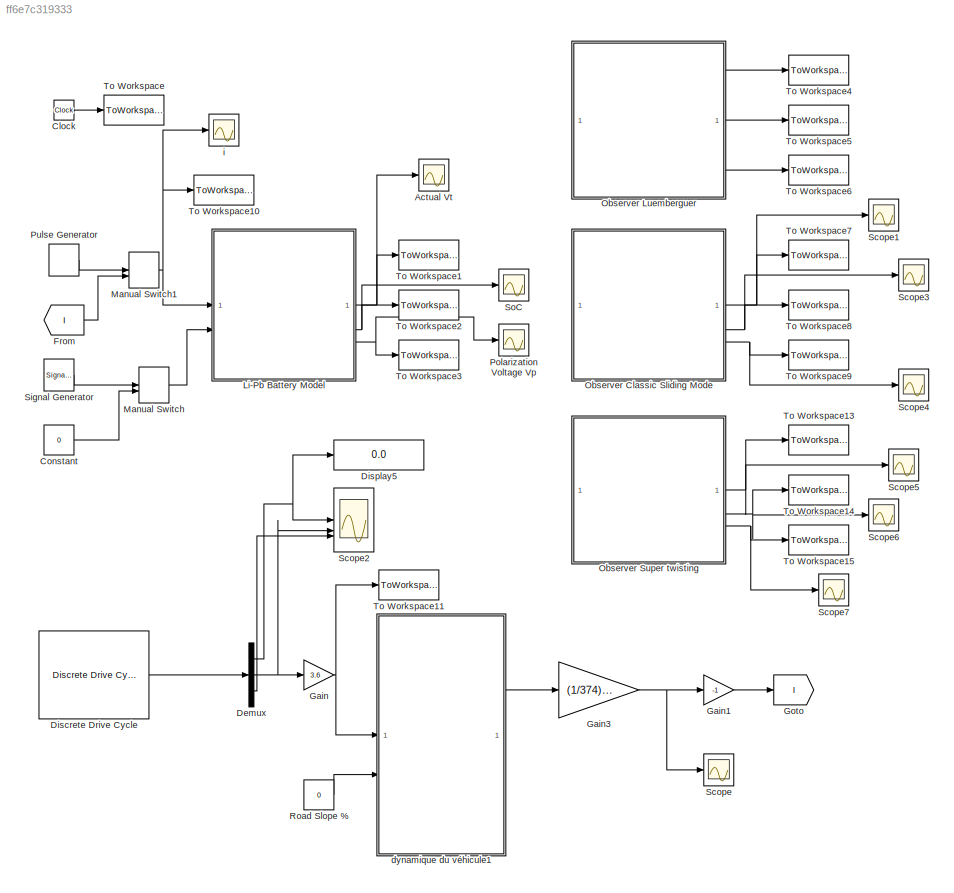
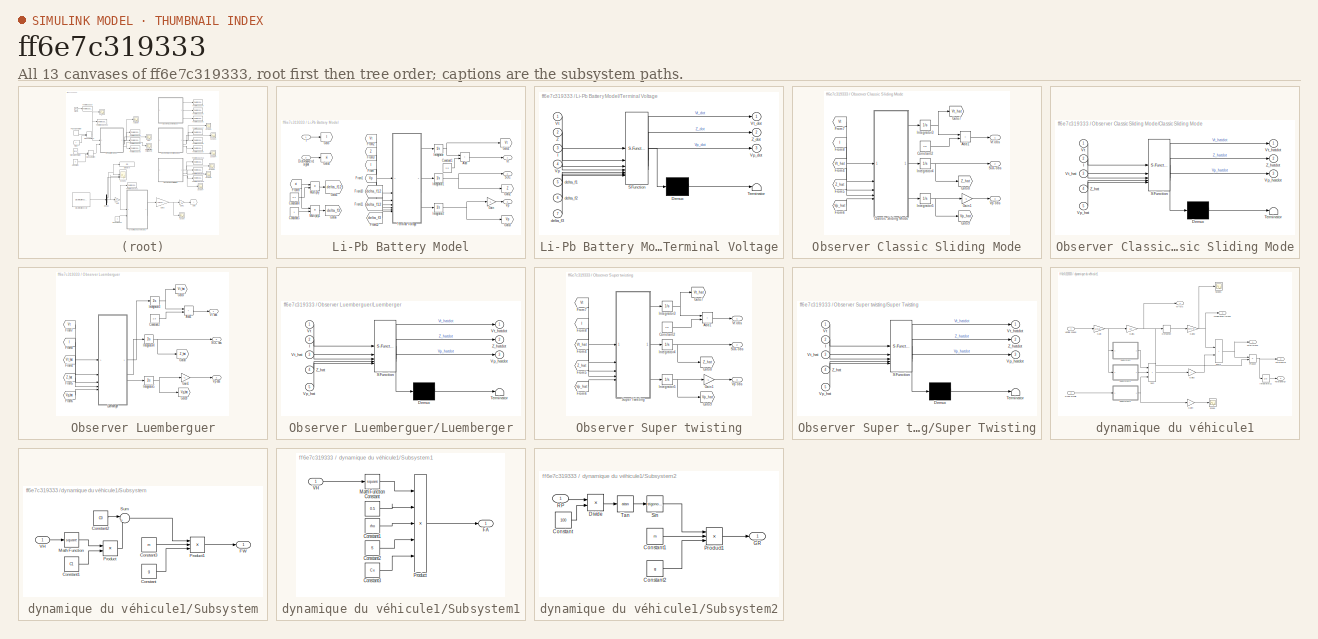
[diagram: thumbnail index - all 13 canvases of the model, root first then tree order]
MODEL slx_ff6e7c319333
KIND model
CONFIG AbsTol = auto
CONFIG EnableMultiTasking = off
CONFIG FixedStep = 0.001
CONFIG MaxStep = auto
CONFIG MinStep = 1e-3
CONFIG RelTol = 1e-3
CONFIG SampleTimeConstraint = Unconstrained
CONFIG SolverName = ode4
CONFIG StartTime = 0.0
CONFIG StopTime = 25000
BLOCK [Scope] Actual Vt 
  Floating = off
  NumInputPorts = 1
  ScopeSpecificationString = Simulink.scopes.TimeScopeBlockCfg('CurrentConfiguration', extmgr.ConfigurationSet(extmgr.Configuration('Core','General UI',true),extmgr.Configuration('Core','Source UI',true),extmgr.Configuration('Sources','WiredSimulink',true,'DataLoggingVariableName','ScopeData1'),extmgr.Configuration('Visuals','Time Domain',true,'SerializedDisplays',{struct('MinYLimReal','2.24488','MaxYLimReal','4.4047','YLabel...<+1725ch>
BLOCK [Clock] Clock
BLOCK [Constant] Constant
  Value = 0
BLOCK [Demux] Demux
  Outputs = 3
BLOCK [Reference] Discrete Drive Cycle  REF=drivecyclelib/Discrete Drive Cycle  (lib defined in slx_81b896a7d342, slx_ea48a560381a)
  SourceBlock = drivecyclelib/Discrete Drive Cycle
  SourceProductName = Drive Cycles Blockset
  SourceType = Discrete Drive Cycle
BLOCK [Display] Display5
  Decimation = 1
BLOCK [From] From
  GotoTag = I
BLOCK [Gain] Gain
  Gain = 3.6
BLOCK [Gain] Gain1
  Gain = -1
BLOCK [Gain] Gain3
  Gain = (1/374)/6
BLOCK [Goto] Goto
  GotoTag = I
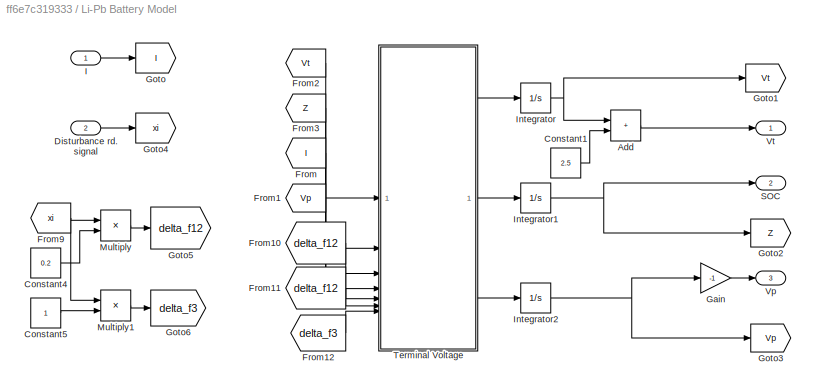
BLOCK [SubSystem] Li-Pb Battery Model
BLOCK [Sum] Li-Pb Battery Model/Add
  IconShape = rectangular
BLOCK [Constant] Li-Pb Battery Model/Constant1
  Value = 2.5
BLOCK [Constant] Li-Pb Battery Model/Constant4
  Value = 0.2
BLOCK [Constant] Li-Pb Battery Model/Constant5
BLOCK [Inport] Li-Pb Battery Model/Disturbance rd. signal
  Port = 2
BLOCK [From] Li-Pb Battery Model/From
  GotoTag = I
  TagVisibility = global
BLOCK [From] Li-Pb Battery Model/From1
  GotoTag = Vp
BLOCK [From] Li-Pb Battery Model/From10
  GotoTag = delta_f12
BLOCK [From] Li-Pb Battery Model/From11
  GotoTag = delta_f12
BLOCK [From] Li-Pb Battery Model/From12
  GotoTag = delta_f3
BLOCK [From] Li-Pb Battery Model/From2
  GotoTag = Vt
  TagVisibility = global
BLOCK [From] Li-Pb Battery Model/From3
  GotoTag = Z
BLOCK [From] Li-Pb Battery Model/From9
  GotoTag = xi
BLOCK [Gain] Li-Pb Battery Model/Gain
  Gain = -1
BLOCK [Goto] Li-Pb Battery Model/Goto
  GotoTag = I
  TagVisibility = global
BLOCK [Goto] Li-Pb Battery Model/Goto1
  GotoTag = Vt
  TagVisibility = global
BLOCK [Goto] Li-Pb Battery Model/Goto2
  GotoTag = Z
BLOCK [Goto] Li-Pb Battery Model/Goto3
  GotoTag = Vp
BLOCK [Goto] Li-Pb Battery Model/Goto4
  GotoTag = xi
BLOCK [Goto] Li-Pb Battery Model/Goto5
  GotoTag = delta_f12
BLOCK [Goto] Li-Pb Battery Model/Goto6
  GotoTag = delta_f3
BLOCK [Inport] Li-Pb Battery Model/I
BLOCK [Integrator] Li-Pb Battery Model/Integrator
  InitialCondition = 1.5
BLOCK [Integrator] Li-Pb Battery Model/Integrator1
  InitialCondition = 1
BLOCK [Integrator] Li-Pb Battery Model/Integrator2
BLOCK [Product] Li-Pb Battery Model/Multiply
BLOCK [Product] Li-Pb Battery Model/Multiply1
BLOCK [Outport] Li-Pb Battery Model/SOC
  Port = 2
  VectorParamsAs1DForOutWhenUnconnected = off
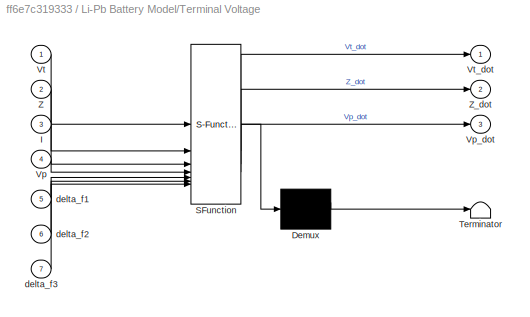
BLOCK [SubSystem] Li-Pb Battery Model/Terminal Voltage
  ErrorFcn = Stateflow.Translate.translate
  PermitHierarchicalResolution = ExplicitOnly
  SFBlockType = MATLAB Function
  TreatAsAtomicUnit = on
BLOCK [Demux] Li-Pb Battery Model/Terminal Voltage/ Demux 
  Outputs = 1
BLOCK [S-Function] Li-Pb Battery Model/Terminal Voltage/ SFunction 
  EnableBusSupport = on
  FunctionName = sf_sfun
  PortCounts = [7 4]
  SFcnIsStateOwnerBlock = off
  SFunctionDeploymentMode = off
  Tag = Stateflow S-Function 1
BLOCK [Terminator] Li-Pb Battery Model/Terminal Voltage/ Terminator 
BLOCK [Inport] Li-Pb Battery Model/Terminal Voltage/I
  Port = 3
BLOCK [Inport] Li-Pb Battery Model/Terminal Voltage/Vp
  Port = 4
BLOCK [Outport] Li-Pb Battery Model/Terminal Voltage/Vp_dot
  Port = 3
  VectorParamsAs1DForOutWhenUnconnected = off
BLOCK [Inport] Li-Pb Battery Model/Terminal Voltage/Vt
BLOCK [Outport] Li-Pb Battery Model/Terminal Voltage/Vt_dot
  VectorParamsAs1DForOutWhenUnconnected = off
BLOCK [Inport] Li-Pb Battery Model/Terminal Voltage/Z
  Port = 2
BLOCK [Outport] Li-Pb Battery Model/Terminal Voltage/Z_dot
  Port = 2
  VectorParamsAs1DForOutWhenUnconnected = off
BLOCK [Inport] Li-Pb Battery Model/Terminal Voltage/delta_f1
  Port = 5
BLOCK [Inport] Li-Pb Battery Model/Terminal Voltage/delta_f2
  Port = 6
BLOCK [Inport] Li-Pb Battery Model/Terminal Voltage/delta_f3
  Port = 7
BLOCK [Outport] Li-Pb Battery Model/Vp
  Port = 3
  VectorParamsAs1DForOutWhenUnconnected = off
BLOCK [Outport] Li-Pb Battery Model/Vt
  VectorParamsAs1DForOutWhenUnconnected = off
BLOCK [ManualSwitch] Manual Switch
BLOCK [ManualSwitch] Manual Switch1
BLOCK [SubSystem] Observer Classic Sliding Mode
BLOCK [Sum] Observer Classic Sliding Mode/Add1
  IconShape = rectangular
BLOCK [SubSystem] Observer Classic Sliding Mode/Classic Sliding Mode
  ErrorFcn = Stateflow.Translate.translate
  PermitHierarchicalResolution = ExplicitOnly
  SFBlockType = MATLAB Function
  TreatAsAtomicUnit = on
BLOCK [Demux] Observer Classic Sliding Mode/Classic Sliding Mode/ Demux 
  Outputs = 1
BLOCK [S-Function] Observer Classic Sliding Mode/Classic Sliding Mode/ SFunction 
  EnableBusSupport = on
  FunctionName = sf_sfun
  PortCounts = [5 4]
  SFcnIsStateOwnerBlock = off
  SFunctionDeploymentMode = off
  Tag = Stateflow S-Function 3
BLOCK [Terminator] Observer Classic Sliding Mode/Classic Sliding Mode/ Terminator 
BLOCK [Inport] Observer Classic Sliding Mode/Classic Sliding Mode/I
  Port = 2
BLOCK [Inport] Observer Classic Sliding Mode/Classic Sliding Mode/Vp_hat
  Port = 5
BLOCK [Outport] Observer Classic Sliding Mode/Classic Sliding Mode/Vp_hatdot
  Port = 3
  VectorParamsAs1DForOutWhenUnconnected = off
BLOCK [Inport] Observer Classic Sliding Mode/Classic Sliding Mode/Vt
BLOCK [Inport] Observer Classic Sliding Mode/Classic Sliding Mode/Vt_hat
  Port = 3
BLOCK [Outport] Observer Classic Sliding Mode/Classic Sliding Mode/Vt_hatdot
  VectorParamsAs1DForOutWhenUnconnected = off
BLOCK [Inport] Observer Classic Sliding Mode/Classic Sliding Mode/Z_hat
  Port = 4
BLOCK [Outport] Observer Classic Sliding Mode/Classic Sliding Mode/Z_hatdot
  Port = 2
  VectorParamsAs1DForOutWhenUnconnected = off
BLOCK [Constant] Observer Classic Sliding Mode/Constant2
  Value = 2.5
BLOCK [From] Observer Classic Sliding Mode/From4
  GotoTag = Vt_hat
BLOCK [From] Observer Classic Sliding Mode/From5
  GotoTag = Z_hat
BLOCK [From] Observer Classic Sliding Mode/From6
  GotoTag = Vp_hat
BLOCK [From] Observer Classic Sliding Mode/From7
  GotoTag = Vt
  TagVisibility = global
BLOCK [From] Observer Classic Sliding Mode/From8
  GotoTag = I
  TagVisibility = global
BLOCK [Gain] Observer Classic Sliding Mode/Gain1
  Gain = -1
BLOCK [Goto] Observer Classic Sliding Mode/Goto7
  GotoTag = Vt_hat
BLOCK [Goto] Observer Classic Sliding Mode/Goto8
  GotoTag = Z_hat
BLOCK [Goto] Observer Classic Sliding Mode/Goto9
  GotoTag = Vp_hat
BLOCK [Integrator] Observer Classic Sliding Mode/Integrator3
  InitialCondition = 3
BLOCK [Integrator] Observer Classic Sliding Mode/Integrator4
  InitialCondition = 2
BLOCK [Integrator] Observer Classic Sliding Mode/Integrator5
  InitialCondition = 1
BLOCK [Outport] Observer Classic Sliding Mode/SOC obs
  Port = 2
  VectorParamsAs1DForOutWhenUnconnected = off
BLOCK [Outport] Observer Classic Sliding Mode/Vp obs
  Port = 3
  VectorParamsAs1DForOutWhenUnconnected = off
BLOCK [Outport] Observer Classic Sliding Mode/Vt obs
  VectorParamsAs1DForOutWhenUnconnected = off
BLOCK [SubSystem] Observer Luemberguer
BLOCK [Sum] Observer Luemberguer/Add1
  IconShape = rectangular
BLOCK [Constant] Observer Luemberguer/Constant2
  Value = 2.5
BLOCK [From] Observer Luemberguer/From4
  GotoTag = Vt_hat
BLOCK [From] Observer Luemberguer/From5
  GotoTag = Z_hat
BLOCK [From] Observer Luemberguer/From6
  GotoTag = Vp_hat
BLOCK [From] Observer Luemberguer/From7
  GotoTag = Vt
  TagVisibility = global
BLOCK [From] Observer Luemberguer/From8
  GotoTag = I
  TagVisibility = global
BLOCK [Gain] Observer Luemberguer/Gain1
  Gain = -1
BLOCK [Goto] Observer Luemberguer/Goto7
  GotoTag = Vt_hat
BLOCK [Goto] Observer Luemberguer/Goto8
  GotoTag = Z_hat
BLOCK [Goto] Observer Luemberguer/Goto9
  GotoTag = Vp_hat
BLOCK [Integrator] Observer Luemberguer/Integrator3
  InitialCondition = 3
BLOCK [Integrator] Observer Luemberguer/Integrator4
  InitialCondition = 2
BLOCK [Integrator] Observer Luemberguer/Integrator5
  InitialCondition = 1
BLOCK [SubSystem] Observer Luemberguer/Luemberger
  ErrorFcn = Stateflow.Translate.translate
  PermitHierarchicalResolution = ExplicitOnly
  SFBlockType = MATLAB Function
  TreatAsAtomicUnit = on
BLOCK [Demux] Observer Luemberguer/Luemberger/ Demux 
  Outputs = 1
BLOCK [S-Function] Observer Luemberguer/Luemberger/ SFunction 
  EnableBusSupport = on
  FunctionName = sf_sfun
  PortCounts = [5 4]
  SFcnIsStateOwnerBlock = off
  SFunctionDeploymentMode = off
  Tag = Stateflow S-Function 2
BLOCK [Terminator] Observer Luemberguer/Luemberger/ Terminator 
BLOCK [Inport] Observer Luemberguer/Luemberger/I
  Port = 2
BLOCK [Inport] Observer Luemberguer/Luemberger/Vp_hat
  Port = 5
BLOCK [Outport] Observer Luemberguer/Luemberger/Vp_hatdot
  Port = 3
  VectorParamsAs1DForOutWhenUnconnected = off
BLOCK [Inport] Observer Luemberguer/Luemberger/Vt
BLOCK [Inport] Observer Luemberguer/Luemberger/Vt_hat
  Port = 3
BLOCK [Outport] Observer Luemberguer/Luemberger/Vt_hatdot
  VectorParamsAs1DForOutWhenUnconnected = off
BLOCK [Inport] Observer Luemberguer/Luemberger/Z_hat
  Port = 4
BLOCK [Outport] Observer Luemberguer/Luemberger/Z_hatdot
  Port = 2
  VectorParamsAs1DForOutWhenUnconnected = off
BLOCK [Outport] Observer Luemberguer/SOC obs
  Port = 2
  VectorParamsAs1DForOutWhenUnconnected = off
BLOCK [Outport] Observer Luemberguer/Vp obs
  Port = 3
  VectorParamsAs1DForOutWhenUnconnected = off
BLOCK [Outport] Observer Luemberguer/Vt obs
  VectorParamsAs1DForOutWhenUnconnected = off
BLOCK [SubSystem] Observer Super twisting
BLOCK [Sum] Observer Super twisting/Add1
  IconShape = rectangular
BLOCK [Constant] Observer Super twisting/Constant2
  Value = 2.5
BLOCK [From] Observer Super twisting/From4
  GotoTag = Vt_hat
BLOCK [From] Observer Super twisting/From5
  GotoTag = Z_hat
BLOCK [From] Observer Super twisting/From6
  GotoTag = Vp_hat
BLOCK [From] Observer Super twisting/From7
  GotoTag = Vt
  TagVisibility = global
BLOCK [From] Observer Super twisting/From8
  GotoTag = I
  TagVisibility = global
BLOCK [Gain] Observer Super twisting/Gain1
  Gain = -1
BLOCK [Goto] Observer Super twisting/Goto7
  GotoTag = Vt_hat
BLOCK [Goto] Observer Super twisting/Goto8
  GotoTag = Z_hat
BLOCK [Goto] Observer Super twisting/Goto9
  GotoTag = Vp_hat
BLOCK [Integrator] Observer Super twisting/Integrator3
  InitialCondition = 3
BLOCK [Integrator] Observer Super twisting/Integrator4
  InitialCondition = 2
BLOCK [Integrator] Observer Super twisting/Integrator5
  InitialCondition = 1
BLOCK [Outport] Observer Super twisting/SOC obs
  Port = 2
  VectorParamsAs1DForOutWhenUnconnected = off
BLOCK [SubSystem] Observer Super twisting/Super Twisting
  ErrorFcn = Stateflow.Translate.translate
  PermitHierarchicalResolution = ExplicitOnly
  SFBlockType = MATLAB Function
  TreatAsAtomicUnit = on
BLOCK [Demux] Observer Super twisting/Super Twisting/ Demux 
  Outputs = 1
BLOCK [S-Function] Observer Super twisting/Super Twisting/ SFunction 
  EnableBusSupport = on
  FunctionName = sf_sfun
  PortCounts = [5 4]
  SFcnIsStateOwnerBlock = off
  SFunctionDeploymentMode = off
  Tag = Stateflow S-Function 4
BLOCK [Terminator] Observer Super twisting/Super Twisting/ Terminator 
BLOCK [Inport] Observer Super twisting/Super Twisting/I
  Port = 2
BLOCK [Inport] Observer Super twisting/Super Twisting/Vp_hat
  Port = 5
BLOCK [Outport] Observer Super twisting/Super Twisting/Vp_hatdot
  Port = 3
  VectorParamsAs1DForOutWhenUnconnected = off
BLOCK [Inport] Observer Super twisting/Super Twisting/Vt
BLOCK [Inport] Observer Super twisting/Super Twisting/Vt_hat
  Port = 3
BLOCK [Outport] Observer Super twisting/Super Twisting/Vt_hatdot
  VectorParamsAs1DForOutWhenUnconnected = off
BLOCK [Inport] Observer Super twisting/Super Twisting/Z_hat
  Port = 4
BLOCK [Outport] Observer Super twisting/Super Twisting/Z_hatdot
  Port = 2
  VectorParamsAs1DForOutWhenUnconnected = off
BLOCK [Outport] Observer Super twisting/Vp obs
  Port = 3
  VectorParamsAs1DForOutWhenUnconnected = off
BLOCK [Outport] Observer Super twisting/Vt obs
  VectorParamsAs1DForOutWhenUnconnected = off
BLOCK [Scope] Polarization Voltage Vp
  Floating = off
  NumInputPorts = 1
  ScopeSpecificationString = Simulink.scopes.TimeScopeBlockCfg('CurrentConfiguration', extmgr.ConfigurationSet(extmgr.Configuration('Core','General UI',true),extmgr.Configuration('Core','Source UI',true),extmgr.Configuration('Sources','WiredSimulink',true,'DataLoggingVariableName','ScopeData4'),extmgr.Configuration('Visuals','Time Domain',true,'SerializedDisplays',{struct('MinYLimReal','-0.00247','MaxYLimReal','0.01744','YLab...<+1498ch>
BLOCK [DiscretePulseGenerator] Pulse Generator
  Amplitude = -5
  Period = 960
  PulseType = Time based
  PulseWidth = (360*100)/960
BLOCK [Constant] Road Slope %
  Value = 0
BLOCK [Scope] Scope
  Floating = off
  NumInputPorts = 1
  ScopeSpecificationString = Simulink.scopes.TimeScopeBlockCfg('CurrentConfiguration', extmgr.ConfigurationSet(extmgr.Configuration('Core','General UI',true),extmgr.Configuration('Core','Source UI',true),extmgr.Configuration('Sources','WiredSimulink',true,'DataLoggingVariableName','ScopeData1'),extmgr.Configuration('Visuals','Time Domain',true,'SerializedDisplays',{struct('MinYLimReal','-8.37873','MaxYLimReal','10.85587','YLa...<+1457ch>
BLOCK [Scope] Scope1
  Floating = off
  NumInputPorts = 1
  ScopeSpecificationString = Simulink.scopes.TimeScopeBlockCfg('CurrentConfiguration', extmgr.ConfigurationSet(extmgr.Configuration('Core','General UI',true),extmgr.Configuration('Core','Source UI',true),extmgr.Configuration('Sources','WiredSimulink',true,'DataLoggingVariableName','ScopeData1'),extmgr.Configuration('Visuals','Time Domain',true),extmgr.Configuration('Tools','Plot Navigation',true),extmgr.Configuration('Tools',...<+40ch>
BLOCK [Scope] Scope2
  Floating = off
  NumInputPorts = 3
  ScopeSpecificationString = Simulink.scopes.TimeScopeBlockCfg('CurrentConfiguration', extmgr.ConfigurationSet(extmgr.Configuration('Core','General UI',true),extmgr.Configuration('Core','Source UI',true),extmgr.Configuration('Sources','WiredSimulink',true,'DataLoggingVariableName','ScopeData2','DataLoggingSaveFormat','StructureWithTime','DataLoggingDecimation','1','DataLoggingDecimateData',true),extmgr.Configuration('Visuals'...<+3404ch>
BLOCK [Scope] Scope3
  Floating = off
  NumInputPorts = 1
  ScopeSpecificationString = Simulink.scopes.TimeScopeBlockCfg('CurrentConfiguration', extmgr.ConfigurationSet(extmgr.Configuration('Core','General UI',true),extmgr.Configuration('Core','Source UI',true),extmgr.Configuration('Sources','WiredSimulink',true,'DataLoggingVariableName','ScopeData2'),extmgr.Configuration('Visuals','Time Domain',true),extmgr.Configuration('Tools','Plot Navigation',true),extmgr.Configuration('Tools',...<+40ch>
BLOCK [Scope] Scope4
  Floating = off
  NumInputPorts = 1
  ScopeSpecificationString = Simulink.scopes.TimeScopeBlockCfg('CurrentConfiguration', extmgr.ConfigurationSet(extmgr.Configuration('Core','General UI',true),extmgr.Configuration('Core','Source UI',true),extmgr.Configuration('Sources','WiredSimulink',true,'DataLoggingVariableName','ScopeData3'),extmgr.Configuration('Visuals','Time Domain',true),extmgr.Configuration('Tools','Plot Navigation',true),extmgr.Configuration('Tools',...<+40ch>
BLOCK [Scope] Scope5
  Floating = off
  NumInputPorts = 1
  ScopeSpecificationString = Simulink.scopes.TimeScopeBlockCfg('CurrentConfiguration', extmgr.ConfigurationSet(extmgr.Configuration('Core','General UI',true),extmgr.Configuration('Core','Source UI',true),extmgr.Configuration('Sources','WiredSimulink',true,'DataLoggingVariableName','ScopeData4'),extmgr.Configuration('Visuals','Time Domain',true),extmgr.Configuration('Tools','Plot Navigation',true),extmgr.Configuration('Tools',...<+40ch>
BLOCK [Scope] Scope6
  Floating = off
  NumInputPorts = 1
  ScopeSpecificationString = Simulink.scopes.TimeScopeBlockCfg('CurrentConfiguration', extmgr.ConfigurationSet(extmgr.Configuration('Core','General UI',true),extmgr.Configuration('Core','Source UI',true),extmgr.Configuration('Sources','WiredSimulink',true,'DataLoggingVariableName','ScopeData5'),extmgr.Configuration('Visuals','Time Domain',true),extmgr.Configuration('Tools','Plot Navigation',true),extmgr.Configuration('Tools',...<+40ch>
BLOCK [Scope] Scope7
  Floating = off
  NumInputPorts = 1
  ScopeSpecificationString = Simulink.scopes.TimeScopeBlockCfg('CurrentConfiguration', extmgr.ConfigurationSet(extmgr.Configuration('Core','General UI',true),extmgr.Configuration('Core','Source UI',true),extmgr.Configuration('Sources','WiredSimulink',true,'DataLoggingVariableName','ScopeData6'),extmgr.Configuration('Visuals','Time Domain',true),extmgr.Configuration('Tools','Plot Navigation',true),extmgr.Configuration('Tools',...<+40ch>
BLOCK [SignalGenerator] Signal Generator
  Amplitude = 0.01
  Frequency = 1000
  WaveForm = random
BLOCK [Scope] SoC
  Floating = off
  NumInputPorts = 1
  ScopeSpecificationString = Simulink.scopes.TimeScopeBlockCfg('CurrentConfiguration', extmgr.ConfigurationSet(extmgr.Configuration('Core','General UI',true),extmgr.Configuration('Core','Source UI',true),extmgr.Configuration('Sources','WiredSimulink',true,'DataLoggingVariableName','ScopeData3'),extmgr.Configuration('Visuals','Time Domain',true,'SerializedDisplays',{struct('MinYLimReal','-0.03707','MaxYLimReal','1.11523','YLab...<+1469ch>
BLOCK [ToWorkspace] To Workspace
  FixptAsFi = on
  MaxDataPoints = inf
  SampleTime = -1
  VariableName = t
BLOCK [ToWorkspace] To Workspace1
  FixptAsFi = on
  MaxDataPoints = inf
  SampleTime = -1
  VariableName = Vt
BLOCK [ToWorkspace] To Workspace10
  FixptAsFi = on
  MaxDataPoints = inf
  SampleTime = -1
  VariableName = I
BLOCK [ToWorkspace] To Workspace11
  FixptAsFi = on
  MaxDataPoints = inf
  SampleTime = -1
  VariableName = driving_cycle
BLOCK [ToWorkspace] To Workspace13
  FixptAsFi = on
  MaxDataPoints = inf
  SampleTime = -1
  VariableName = Vt_hat_Super
BLOCK [ToWorkspace] To Workspace14
  FixptAsFi = on
  MaxDataPoints = inf
  SampleTime = -1
  VariableName = Z_hat_Super
BLOCK [ToWorkspace] To Workspace15
  FixptAsFi = on
  MaxDataPoints = inf
  SampleTime = -1
  VariableName = Vp_hat_Super
BLOCK [ToWorkspace] To Workspace2
  FixptAsFi = on
  MaxDataPoints = inf
  SampleTime = -1
  VariableName = Z
BLOCK [ToWorkspace] To Workspace3
  FixptAsFi = on
  MaxDataPoints = inf
  SampleTime = -1
  VariableName = Vp
BLOCK [ToWorkspace] To Workspace4
  FixptAsFi = on
  MaxDataPoints = inf
  SampleTime = -1
  VariableName = Vt_hat_Luem
BLOCK [ToWorkspace] To Workspace5
  FixptAsFi = on
  MaxDataPoints = inf
  SampleTime = -1
  VariableName = Z_hat_Luem
BLOCK [ToWorkspace] To Workspace6
  FixptAsFi = on
  MaxDataPoints = inf
  SampleTime = -1
  VariableName = Vp_hat_Luem
BLOCK [ToWorkspace] To Workspace7
  FixptAsFi = on
  MaxDataPoints = inf
  SampleTime = -1
  VariableName = Vt_hat_Sli
BLOCK [ToWorkspace] To Workspace8
  FixptAsFi = on
  MaxDataPoints = inf
  SampleTime = -1
  VariableName = Z_hat_Sli
BLOCK [ToWorkspace] To Workspace9
  FixptAsFi = on
  MaxDataPoints = inf
  SampleTime = -1
  VariableName = Vp_hat_Sli
BLOCK [SubSystem] dynamique du véhicule1
BLOCK [Outport] dynamique du véhicule1/Acceleration torque
  Port = 3
  VectorParamsAs1DForOutWhenUnconnected = off
BLOCK [Derivative] dynamique du véhicule1/Derivative
BLOCK [Gain] dynamique du véhicule1/Gain
  Gain = 1/3.6
BLOCK [Gain] dynamique du véhicule1/Gain1
  Gain = 1/r
BLOCK [Gain] dynamique du véhicule1/Gain2
  Gain = m*r^2
BLOCK [Gain] dynamique du véhicule1/Gain3
  Gain = r
BLOCK [Gain] dynamique du véhicule1/Gain4
  Gain = r
BLOCK [Integrator] dynamique du véhicule1/Integrator11
BLOCK [Product] dynamique du véhicule1/Product
BLOCK [Inport] dynamique du véhicule1/Road profile
  Port = 2
BLOCK [Scope] dynamique du véhicule1/Scope
  Floating = off
  NumInputPorts = 1
  ScopeSpecificationString = Simulink.scopes.TimeScopeBlockCfg('CurrentConfiguration', extmgr.ConfigurationSet(extmgr.Configuration('Core','General UI',true),extmgr.Configuration('Core','Source UI',true),extmgr.Configuration('Sources','WiredSimulink',true,'DataLoggingVariableName','ScopeData1'),extmgr.Configuration('Visuals','Time Domain',true),extmgr.Configuration('Tools','Plot Navigation',true),extmgr.Configuration('Tools',...<+40ch>
BLOCK [Scope] dynamique du véhicule1/Scope1
  Floating = off
  NumInputPorts = 1
  ScopeSpecificationString = Simulink.scopes.TimeScopeBlockCfg('CurrentConfiguration', extmgr.ConfigurationSet(extmgr.Configuration('Core','General UI',true),extmgr.Configuration('Core','Source UI',true),extmgr.Configuration('Sources','WiredSimulink',true,'DataLoggingVariableName','ScopeData2'),extmgr.Configuration('Visuals','Time Domain',true),extmgr.Configuration('Tools','Plot Navigation',true),extmgr.Configuration('Tools',...<+40ch>
BLOCK [SubSystem] dynamique du véhicule1/Subsystem
BLOCK [Constant] dynamique du véhicule1/Subsystem/Constant
  Value = g
BLOCK [Constant] dynamique du véhicule1/Subsystem/Constant1
  Value = C1
BLOCK [Constant] dynamique du véhicule1/Subsystem/Constant2
  Value = C0
BLOCK [Constant] dynamique du véhicule1/Subsystem/Constant3
  Value = m
BLOCK [Outport] dynamique du véhicule1/Subsystem/FW
BLOCK [Math] dynamique du véhicule1/Subsystem/Math Function
  Operator = square
  SignedPower = on
BLOCK [Product] dynamique du véhicule1/Subsystem/Product
BLOCK [Product] dynamique du véhicule1/Subsystem/Product1
  Inputs = 3
BLOCK [Sum] dynamique du véhicule1/Subsystem/Sum
  Inputs = |++
BLOCK [Inport] dynamique du véhicule1/Subsystem/VH
BLOCK [SubSystem] dynamique du véhicule1/Subsystem1
BLOCK [Constant] dynamique du véhicule1/Subsystem1/Constant
  Value = 0.5
BLOCK [Constant] dynamique du véhicule1/Subsystem1/Constant1
  Value = rho
BLOCK [Constant] dynamique du véhicule1/Subsystem1/Constant2
  Value = S
BLOCK [Constant] dynamique du véhicule1/Subsystem1/Constant3
  Value = Cx
BLOCK [Outport] dynamique du véhicule1/Subsystem1/FA
BLOCK [Math] dynamique du véhicule1/Subsystem1/Math Function
  Operator = square
  SignedPower = on
BLOCK [Product] dynamique du véhicule1/Subsystem1/Product
  Inputs = 5
BLOCK [Inport] dynamique du véhicule1/Subsystem1/VH
BLOCK [SubSystem] dynamique du véhicule1/Subsystem2
BLOCK [Constant] dynamique du véhicule1/Subsystem2/Constant
  Value = 100
BLOCK [Constant] dynamique du véhicule1/Subsystem2/Constant1
  Value = m
BLOCK [Constant] dynamique du véhicule1/Subsystem2/Constant2
  Value = g
BLOCK [Product] dynamique du véhicule1/Subsystem2/Divide
  Inputs = */
BLOCK [Outport] dynamique du véhicule1/Subsystem2/GR
BLOCK [Product] dynamique du véhicule1/Subsystem2/Product1
  Inputs = 3
BLOCK [Inport] dynamique du véhicule1/Subsystem2/RP
BLOCK [Trigonometry] dynamique du véhicule1/Subsystem2/Sin
BLOCK [Trigonometry] dynamique du véhicule1/Subsystem2/Tan
  Operator = atan
BLOCK [Sum] dynamique du véhicule1/Sum
  IconShape = rectangular
  Inputs = +++
BLOCK [Sum] dynamique du véhicule1/Sum1
  IconShape = rectangular
BLOCK [Outport] dynamique du véhicule1/Total Energy
  Port = 5
  VectorParamsAs1DForOutWhenUnconnected = off
BLOCK [Outport] dynamique du véhicule1/Total power
  Port = 2
  VectorParamsAs1DForOutWhenUnconnected = off
BLOCK [Outport] dynamique du véhicule1/Total torque
  VectorParamsAs1DForOutWhenUnconnected = off
BLOCK [Inport] dynamique du véhicule1/Vehicle speed
BLOCK [Outport] dynamique du véhicule1/W-rd//s
  Port = 4
  VectorParamsAs1DForOutWhenUnconnected = off
BLOCK [Scope] i
  Floating = off
  NumInputPorts = 1
  ScopeSpecificationString = Simulink.scopes.TimeScopeBlockCfg('CurrentConfiguration', extmgr.ConfigurationSet(extmgr.Configuration('Core','General UI',true),extmgr.Configuration('Core','Source UI',true),extmgr.Configuration('Sources','WiredSimulink',true,'DataLoggingVariableName','ScopeData2'),extmgr.Configuration('Visuals','Time Domain',true,'SerializedDisplays',{struct('MinYLimReal','-10.85587','MaxYLimReal','8.37873','YLa...<+1466ch>
LINE Clock:1 -> To Workspace:1
LINE Constant:1 -> Manual Switch:2
NET Demux:1 -> Display5:1, Scope2:1
NET Demux:2 -> Gain:1, Scope2:2
LINE Demux:3 -> Scope2:3
LINE Discrete Drive Cycle:1 -> Demux:1
LINE From:1 -> Manual Switch1:2
LINE Gain1:1 -> Goto:1
NET Gain3:1 -> Gain1:1, Scope:1
NET Gain:1 -> To Workspace11:1, dynamique du véhicule1:1
LINE Li-Pb Battery Model/Add:1 -> Li-Pb Battery Model/Vt:1
LINE Li-Pb Battery Model/Constant1:1 -> Li-Pb Battery Model/Add:2
LINE Li-Pb Battery Model/Constant4:1 -> Li-Pb Battery Model/Multiply:2
LINE Li-Pb Battery Model/Constant5:1 -> Li-Pb Battery Model/Multiply1:2
LINE Li-Pb Battery Model/Disturbance rd. signal:1 -> Li-Pb Battery Model/Goto4:1
LINE Li-Pb Battery Model/From10:1 -> Li-Pb Battery Model/Terminal Voltage:5
LINE Li-Pb Battery Model/From11:1 -> Li-Pb Battery Model/Terminal Voltage:6
LINE Li-Pb Battery Model/From12:1 -> Li-Pb Battery Model/Terminal Voltage:7
LINE Li-Pb Battery Model/From1:1 -> Li-Pb Battery Model/Terminal Voltage:4
LINE Li-Pb Battery Model/From2:1 -> Li-Pb Battery Model/Terminal Voltage:1
LINE Li-Pb Battery Model/From3:1 -> Li-Pb Battery Model/Terminal Voltage:2
NET Li-Pb Battery Model/From9:1 -> Li-Pb Battery Model/Multiply1:1, Li-Pb Battery Model/Multiply:1
LINE Li-Pb Battery Model/From:1 -> Li-Pb Battery Model/Terminal Voltage:3
LINE Li-Pb Battery Model/Gain:1 -> Li-Pb Battery Model/Vp:1
LINE Li-Pb Battery Model/I:1 -> Li-Pb Battery Model/Goto:1
NET Li-Pb Battery Model/Integrator1:1 -> Li-Pb Battery Model/Goto2:1, Li-Pb Battery Model/SOC:1
NET Li-Pb Battery Model/Integrator2:1 -> Li-Pb Battery Model/Gain:1, Li-Pb Battery Model/Goto3:1
NET Li-Pb Battery Model/Integrator:1 -> Li-Pb Battery Model/Add:1, Li-Pb Battery Model/Goto1:1
LINE Li-Pb Battery Model/Multiply1:1 -> Li-Pb Battery Model/Goto6:1
LINE Li-Pb Battery Model/Multiply:1 -> Li-Pb Battery Model/Goto5:1
LINE Li-Pb Battery Model/Terminal Voltage:1 -> Li-Pb Battery Model/Integrator:1
LINE Li-Pb Battery Model/Terminal Voltage:2 -> Li-Pb Battery Model/Integrator1:1
LINE Li-Pb Battery Model/Terminal Voltage:3 -> Li-Pb Battery Model/Integrator2:1
NET Li-Pb Battery Model:1 -> Actual Vt :1, To Workspace1:1
NET Li-Pb Battery Model:2 -> SoC:1, To Workspace2:1
NET Li-Pb Battery Model:3 -> Polarization Voltage Vp:1, To Workspace3:1
NET Manual Switch1:1 -> Li-Pb Battery Model:1, To Workspace10:1, i:1
LINE Manual Switch:1 -> Li-Pb Battery Model:2
LINE Observer Classic Sliding Mode/Add1:1 -> Observer Classic Sliding Mode/Vt obs:1
LINE Observer Classic Sliding Mode/Classic Sliding Mode:1 -> Observer Classic Sliding Mode/Integrator3:1
LINE Observer Classic Sliding Mode/Classic Sliding Mode:2 -> Observer Classic Sliding Mode/Integrator4:1
LINE Observer Classic Sliding Mode/Classic Sliding Mode:3 -> Observer Classic Sliding Mode/Integrator5:1
LINE Observer Classic Sliding Mode/Constant2:1 -> Observer Classic Sliding Mode/Add1:2
LINE Observer Classic Sliding Mode/From4:1 -> Observer Classic Sliding Mode/Classic Sliding Mode:3
LINE Observer Classic Sliding Mode/From5:1 -> Observer Classic Sliding Mode/Classic Sliding Mode:4
LINE Observer Classic Sliding Mode/From6:1 -> Observer Classic Sliding Mode/Classic Sliding Mode:5
LINE Observer Classic Sliding Mode/From7:1 -> Observer Classic Sliding Mode/Classic Sliding Mode:1
LINE Observer Classic Sliding Mode/From8:1 -> Observer Classic Sliding Mode/Classic Sliding Mode:2
LINE Observer Classic Sliding Mode/Gain1:1 -> Observer Classic Sliding Mode/Vp obs:1
NET Observer Classic Sliding Mode/Integrator3:1 -> Observer Classic Sliding Mode/Add1:1, Observer Classic Sliding Mode/Goto7:1
NET Observer Classic Sliding Mode/Integrator4:1 -> Observer Classic Sliding Mode/Goto8:1, Observer Classic Sliding Mode/SOC obs:1
NET Observer Classic Sliding Mode/Integrator5:1 -> Observer Classic Sliding Mode/Gain1:1, Observer Classic Sliding Mode/Goto9:1
NET Observer Classic Sliding Mode:1 -> Scope1:1, To Workspace7:1
NET Observer Classic Sliding Mode:2 -> Scope3:1, To Workspace8:1
NET Observer Classic Sliding Mode:3 -> Scope4:1, To Workspace9:1
LINE Observer Luemberguer/Add1:1 -> Observer Luemberguer/Vt obs:1
LINE Observer Luemberguer/Constant2:1 -> Observer Luemberguer/Add1:2
LINE Observer Luemberguer/From4:1 -> Observer Luemberguer/Luemberger:3
LINE Observer Luemberguer/From5:1 -> Observer Luemberguer/Luemberger:4
LINE Observer Luemberguer/From6:1 -> Observer Luemberguer/Luemberger:5
LINE Observer Luemberguer/From7:1 -> Observer Luemberguer/Luemberger:1
LINE Observer Luemberguer/From8:1 -> Observer Luemberguer/Luemberger:2
LINE Observer Luemberguer/Gain1:1 -> Observer Luemberguer/Vp obs:1
NET Observer Luemberguer/Integrator3:1 -> Observer Luemberguer/Add1:1, Observer Luemberguer/Goto7:1
NET Observer Luemberguer/Integrator4:1 -> Observer Luemberguer/Goto8:1, Observer Luemberguer/SOC obs:1
NET Observer Luemberguer/Integrator5:1 -> Observer Luemberguer/Gain1:1, Observer Luemberguer/Goto9:1
LINE Observer Luemberguer/Luemberger:1 -> Observer Luemberguer/Integrator3:1
LINE Observer Luemberguer/Luemberger:2 -> Observer Luemberguer/Integrator4:1
LINE Observer Luemberguer/Luemberger:3 -> Observer Luemberguer/Integrator5:1
LINE Observer Luemberguer:1 -> To Workspace4:1
LINE Observer Luemberguer:2 -> To Workspace5:1
LINE Observer Luemberguer:3 -> To Workspace6:1
LINE Observer Super twisting/Add1:1 -> Observer Super twisting/Vt obs:1
LINE Observer Super twisting/Constant2:1 -> Observer Super twisting/Add1:2
LINE Observer Super twisting/From4:1 -> Observer Super twisting/Super Twisting:3
LINE Observer Super twisting/From5:1 -> Observer Super twisting/Super Twisting:4
LINE Observer Super twisting/From6:1 -> Observer Super twisting/Super Twisting:5
LINE Observer Super twisting/From7:1 -> Observer Super twisting/Super Twisting:1
LINE Observer Super twisting/From8:1 -> Observer Super twisting/Super Twisting:2
LINE Observer Super twisting/Gain1:1 -> Observer Super twisting/Vp obs:1
NET Observer Super twisting/Integrator3:1 -> Observer Super twisting/Add1:1, Observer Super twisting/Goto7:1
NET Observer Super twisting/Integrator4:1 -> Observer Super twisting/Goto8:1, Observer Super twisting/SOC obs:1
NET Observer Super twisting/Integrator5:1 -> Observer Super twisting/Gain1:1, Observer Super twisting/Goto9:1
LINE Observer Super twisting/Super Twisting:1 -> Observer Super twisting/Integrator3:1
LINE Observer Super twisting/Super Twisting:2 -> Observer Super twisting/Integrator4:1
LINE Observer Super twisting/Super Twisting:3 -> Observer Super twisting/Integrator5:1
NET Observer Super twisting:1 -> Scope5:1, To Workspace13:1
NET Observer Super twisting:2 -> Scope6:1, To Workspace14:1
NET Observer Super twisting:3 -> Scope7:1, To Workspace15:1
LINE Pulse Generator:1 -> Manual Switch1:1
LINE Road Slope %:1 -> dynamique du véhicule1:2
LINE Signal Generator:1 -> Manual Switch:1
LINE dynamique du véhicule1/Derivative:1 -> dynamique du véhicule1/Gain2:1
NET dynamique du véhicule1/Gain1:1 -> dynamique du véhicule1/Derivative:1, dynamique du véhicule1/Product:2, dynamique du véhicule1/W-rd//s:1
NET dynamique du véhicule1/Gain2:1 -> dynamique du véhicule1/Acceleration torque:1, dynamique du véhicule1/Scope1:1, dynamique du véhicule1/Sum1:1
LINE dynamique du véhicule1/Gain3:1 -> dynamique du véhicule1/Sum1:2
LINE dynamique du véhicule1/Gain4:1 -> dynamique du véhicule1/Scope:1
NET dynamique du véhicule1/Gain:1 -> dynamique du véhicule1/Gain1:1, dynamique du véhicule1/Subsystem1:1, dynamique du véhicule1/Subsystem:1
LINE dynamique du véhicule1/Integrator11:1 -> dynamique du véhicule1/Total Energy:1
NET dynamique du véhicule1/Product:1 -> dynamique du véhicule1/Integrator11:1, dynamique du véhicule1/Total power:1
LINE dynamique du véhicule1/Road profile:1 -> dynamique du véhicule1/Subsystem2:1
LINE dynamique du véhicule1/Subsystem/Constant1:1 -> dynamique du véhicule1/Subsystem/Product:2
LINE dynamique du véhicule1/Subsystem/Constant2:1 -> dynamique du véhicule1/Subsystem/Sum:1
LINE dynamique du véhicule1/Subsystem/Constant3:1 -> dynamique du véhicule1/Subsystem/Product1:2
LINE dynamique du véhicule1/Subsystem/Constant:1 -> dynamique du véhicule1/Subsystem/Product1:3
LINE dynamique du véhicule1/Subsystem/Math Function:1 -> dynamique du véhicule1/Subsystem/Product:1
LINE dynamique du véhicule1/Subsystem/Product1:1 -> dynamique du véhicule1/Subsystem/FW:1
LINE dynamique du véhicule1/Subsystem/Product:1 -> dynamique du véhicule1/Subsystem/Sum:2
LINE dynamique du véhicule1/Subsystem/Sum:1 -> dynamique du véhicule1/Subsystem/Product1:1
LINE dynamique du véhicule1/Subsystem/VH:1 -> dynamique du véhicule1/Subsystem/Math Function:1
LINE dynamique du véhicule1/Subsystem1/Constant1:1 -> dynamique du véhicule1/Subsystem1/Product:3
LINE dynamique du véhicule1/Subsystem1/Constant2:1 -> dynamique du véhicule1/Subsystem1/Product:4
LINE dynamique du véhicule1/Subsystem1/Constant3:1 -> dynamique du véhicule1/Subsystem1/Product:5
LINE dynamique du véhicule1/Subsystem1/Constant:1 -> dynamique du véhicule1/Subsystem1/Product:2
LINE dynamique du véhicule1/Subsystem1/Math Function:1 -> dynamique du véhicule1/Subsystem1/Product:1
LINE dynamique du véhicule1/Subsystem1/Product:1 -> dynamique du véhicule1/Subsystem1/FA:1
LINE dynamique du véhicule1/Subsystem1/VH:1 -> dynamique du véhicule1/Subsystem1/Math Function:1
LINE dynamique du véhicule1/Subsystem1:1 -> dynamique du véhicule1/Sum:2
LINE dynamique du véhicule1/Subsystem2/Constant1:1 -> dynamique du véhicule1/Subsystem2/Product1:2
LINE dynamique du véhicule1/Subsystem2/Constant2:1 -> dynamique du véhicule1/Subsystem2/Product1:3
LINE dynamique du véhicule1/Subsystem2/Constant:1 -> dynamique du véhicule1/Subsystem2/Divide:2
LINE dynamique du véhicule1/Subsystem2/Divide:1 -> dynamique du véhicule1/Subsystem2/Tan:1
LINE dynamique du véhicule1/Subsystem2/Product1:1 -> dynamique du véhicule1/Subsystem2/GR:1
LINE dynamique du véhicule1/Subsystem2/RP:1 -> dynamique du véhicule1/Subsystem2/Divide:1
LINE dynamique du véhicule1/Subsystem2/Sin:1 -> dynamique du véhicule1/Subsystem2/Product1:1
LINE dynamique du véhicule1/Subsystem2/Tan:1 -> dynamique du véhicule1/Subsystem2/Sin:1
NET dynamique du véhicule1/Subsystem2:1 -> dynamique du véhicule1/Gain4:1, dynamique du véhicule1/Sum:3
LINE dynamique du véhicule1/Subsystem:1 -> dynamique du véhicule1/Sum:1
NET dynamique du véhicule1/Sum1:1 -> dynamique du véhicule1/Product:1, dynamique du véhicule1/Total torque:1
LINE dynamique du véhicule1/Sum:1 -> dynamique du véhicule1/Gain3:1
LINE dynamique du véhicule1/Vehicle speed:1 -> dynamique du véhicule1/Gain:1
LINE dynamique du véhicule1:2 -> Gain3:1
note: NET lines group one-source signal fan-out (src -> all destinations, sorted); 1:1 wires keep LINE
CHART Li-Pb Battery Model/Terminal Voltage states=1 transitions=1
  STATE_LABEL 'eML_blk_kernel()'
  STATE_LABEL 'SCRIPT:\nfunction [Vt_dot,Z_dot,Vp_dot] = fcn(Vt,Z,I,Vp,delta_f1,delta_f2,delta_f3)\n%---------------------- RC battery model parameters ----------------------\nK = 1.7;                       % Linear relationship\n%Cp = 200;                      % Capacitance [F]\n%Rp = 0.003;                    % Diffusion resistance [ohm]\n%Rt = 0.001;                    % Ohmic resistance [ohm]\n%Cn = 5;             ...<+394ch>'
CHART Observer Luemberguer/Luemberger states=1 transitions=1
  STATE_LABEL 'eML_blk_kernel()'
  STATE_LABEL 'SCRIPT:\nfunction [Vt_hatdot,Z_hatdot,Vp_hatdot] = fcn(Vt,I,Vt_hat,Z_hat,Vp_hat)\n\n% We have to build the observer in the form:\n% X_hatdot = A*X_hat + B*u + H*(y-y_hat) + rho*gamma*sign(y-y_hat)\n\nK = 1.7; \n\na1 = 1.667; \na2 = 0.0589; \nb1 = 0.00672;\nb2 = 0.005;\na11= 2.8339;\na22= 0.1001;\n\n\nerr = (Vt - Vt_hat);\n\n%H = [h1; h2; h3]; % gain matrix\nh1 = 1.3629;\nh2 = 0.9530;\nh3 = -0.0046;\n\nrho = 0.2;\ngamma1 ...<+688ch>'
CHART Observer Classic Sliding Mode/Classic Sliding Mode states=1 transitions=1
  STATE_LABEL 'eML_blk_kernel()'
  STATE_LABEL 'SCRIPT:\nfunction [Vt_hatdot,Z_hatdot,Vp_hatdot] = fcn(Vt,I,Vt_hat,Z_hat,Vp_hat)\n\n% We have to build the observer in the form:\n% X_hatdot = A*X_hat + B*u + H*(y-y_hat) + rho*gamma*sign(y-y_hat)\n\nK = 1.7; \n\na1 = 1.667; \na2 = 0.0589; \nb1 = 0.00672;\nb2 = 0.005;\na11= 2.8339;\na22= 0.1001;\n\n\nerr=(Vt - Vt_hat);\n\n%H = [h1; h2; h3]; % gain matrix\nh1 = 1.3629;\nh2 = 0.9530;\nh3 = -0.0046;\n\nrho = 0.2;\ngamma1 = ...<+780ch>'
CHART Observer Super twisting/Super Twisting states=1 transitions=1
  STATE_LABEL 'eML_blk_kernel()'
  STATE_LABEL 'SCRIPT:\nfunction [Vt_hatdot,Z_hatdot,Vp_hatdot] = fcn(Vt,I,Vt_hat,Z_hat,Vp_hat)\n\n% We have to build the observer in the form:\n% X_hatdot = A*X_hat + B*u + H*(y-y_hat) + rho*gamma*sign(y-y_hat)\n\nK = 1.7; \n\na1 = 1.667; \na2 = 0.0589; \nb1 = 0.00672;\nb2 = 0.005;\na11= 2.8339;\na22= 0.1001;\n\n\nerr=(Vt - Vt_hat);\n\n%H = [h1; h2; h3]; % gain matrix\nh1 = 1.3629;\nh2 = 0.9530;\nh3 = -0.0046;\n\nrho = 0.2;\ngamma1 = ...<+565ch>'
CHART  states=0 transitions=0
CHART  states=0 transitions=0
CHART  states=0 transitions=0
CHART  states=0 transitions=0
